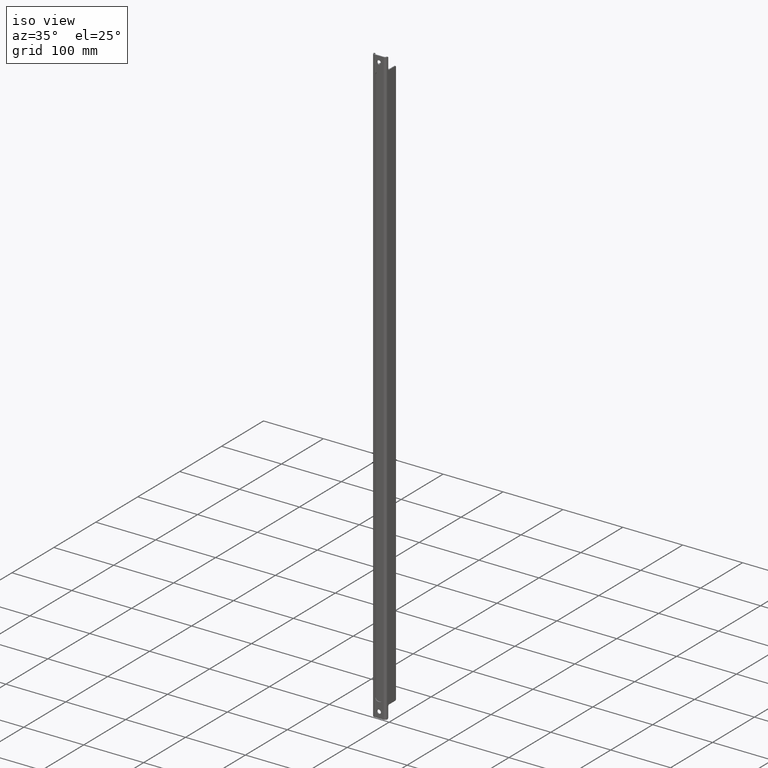
[diagram: clean part render]
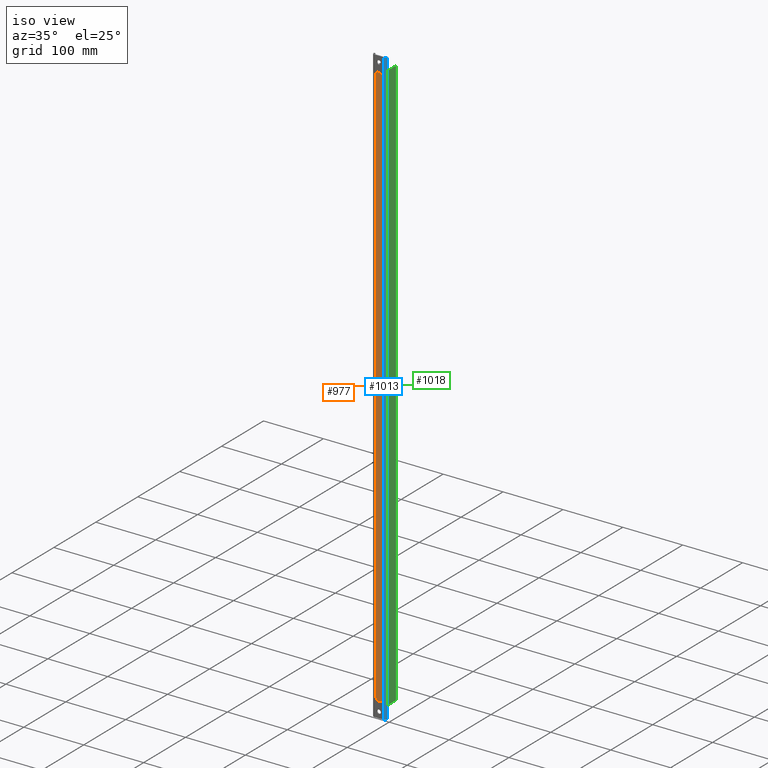
[diagram: same view with three faces highlighted in distinct colors, each labeled with its STEP entity id]
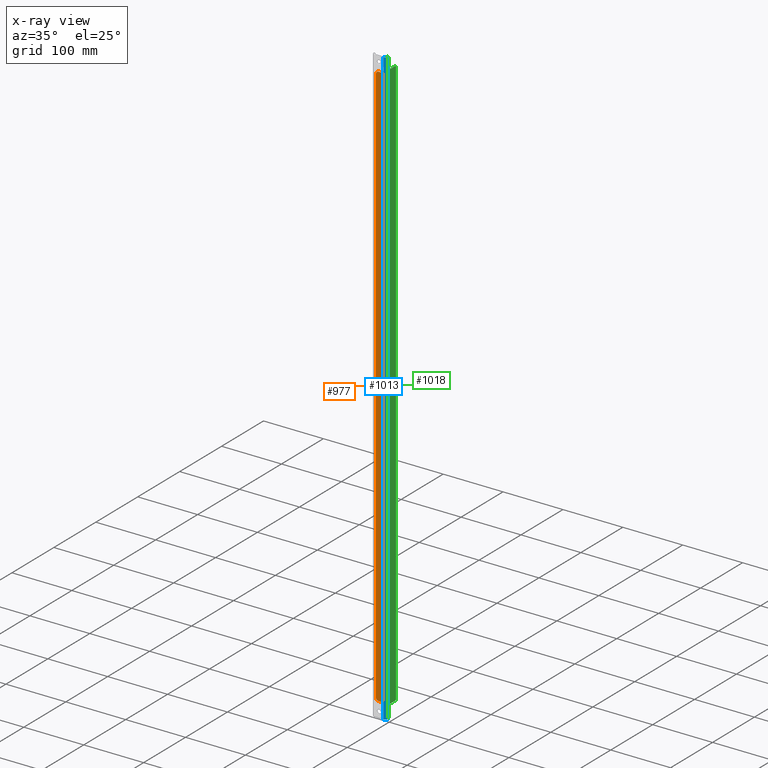
[diagram: x-ray of the same camera — body ghosted, the three highlighted faces saturated]
A machine part, iso view with three faces highlighted in distinct colors.
The next image is the same camera in x-ray (body ghosted, the three faces saturated) — at least one of them is partly hidden behind the body in this view.
Their STEP definitions:

[orange] entity #977 — the highlighted planar face has unit normal (0, 1, -0).
#20=LINE('',#1486,#108);
#21=LINE('',#1491,#109);
#22=LINE('',#1495,#110);
#23=LINE('',#1499,#111);
#108=VECTOR('',#1176,1000.);
#109=VECTOR('',#1179,1000.);
#110=VECTOR('',#1182,1000.);
#111=VECTOR('',#1185,1000.);
#230=ORIENTED_EDGE('',*,*,#516,.F.);
#231=ORIENTED_EDGE('',*,*,#517,.T.);
#232=ORIENTED_EDGE('',*,*,#518,.F.);
#233=ORIENTED_EDGE('',*,*,#519,.T.);
#234=ORIENTED_EDGE('',*,*,#520,.F.);
#235=ORIENTED_EDGE('',*,*,#521,.T.);
#236=ORIENTED_EDGE('',*,*,#522,.F.);
#237=ORIENTED_EDGE('',*,*,#523,.T.);
#516=EDGE_CURVE('',#660,#661,#20,.T.);
#517=EDGE_CURVE('',#660,#662,#756,.T.);
#518=EDGE_CURVE('',#663,#662,#21,.T.);
#519=EDGE_CURVE('',#663,#664,#757,.T.);
#520=EDGE_CURVE('',#665,#664,#22,.T.);
#521=EDGE_CURVE('',#665,#666,#758,.T.);
#522=EDGE_CURVE('',#667,#666,#23,.T.);
#523=EDGE_CURVE('',#667,#661,#759,.T.);
#660=VERTEX_POINT('',#1487);
#661=VERTEX_POINT('',#1488);
#662=VERTEX_POINT('',#1490);
#663=VERTEX_POINT('',#1492);
#664=VERTEX_POINT('',#1494);
#665=VERTEX_POINT('',#1496);
#666=VERTEX_POINT('',#1498);
#667=VERTEX_POINT('',#1500);
#756=CIRCLE('',#1052,5.);
#757=CIRCLE('',#1053,5.);
#758=CIRCLE('',#1054,5.);
#759=CIRCLE('',#1055,5.);
#814=EDGE_LOOP('',(#230,#231,#232,#233,#234,#235,#236,#237));
#882=FACE_BOUND('',#814,.T.);
#946=PLANE('',#1051);
#977=ADVANCED_FACE('',(#882),#946,.F.);
#1051=AXIS2_PLACEMENT_3D('',#1485,#1174,#1175);
#1052=AXIS2_PLACEMENT_3D('',#1489,#1177,#1178);
#1053=AXIS2_PLACEMENT_3D('',#1493,#1180,#1181);
#1054=AXIS2_PLACEMENT_3D('',#1497,#1183,#1184);
#1055=AXIS2_PLACEMENT_3D('',#1501,#1186,#1187);
#1174=DIRECTION('',(4.06163832661068E-16,1.,-3.32494788514936E-15));
#1175=DIRECTION('',(-1.,4.06163832661068E-16,6.76398658185478E-32));
#1176=DIRECTION('',(-8.93686180177302E-17,-1.66533453693773E-16,1.));
#1177=DIRECTION('',(-4.06163832661068E-16,-1.,-1.66533453693773E-16));
#1178=DIRECTION('',(-1.,4.06163832661068E-16,-8.93686180177302E-17));
#1179=DIRECTION('',(-1.,4.06163832661068E-16,-8.93686180177302E-17));
#1180=DIRECTION('',(-4.06163832661068E-16,-1.,-1.66533453693773E-16));
#1181=DIRECTION('',(-1.,4.06163832661068E-16,-8.93686180177302E-17));
#1182=DIRECTION('',(8.93686180177302E-17,1.66533453693773E-16,-1.));
#1183=DIRECTION('',(-4.06163832661068E-16,-1.,-1.66533453693773E-16));
#1184=DIRECTION('',(-1.,4.06163832661068E-16,-8.93686180177302E-17));
#1185=DIRECTION('',(1.,-4.06163832661068E-16,8.93686180177302E-17));
#1186=DIRECTION('',(-4.06163832661068E-16,-1.,-1.66533453693773E-16));
#1187=DIRECTION('',(-1.,4.06163832661068E-16,-8.93686180177302E-17));
#1485=CARTESIAN_POINT('',(4.05776737694852E-15,-23.0000000000003,-3.28184349361263E-14));
#1486=CARTESIAN_POINT('',(-6.00000000000002,-23.,-4.00565866005999E-15));
#1487=CARTESIAN_POINT('',(-5.99999999999994,-22.9999999999999,-470.));
#1488=CARTESIAN_POINT('',(-6.00000000000006,-23.0000000000001,470.));
#1489=CARTESIAN_POINT('',(-0.999999999999947,-22.9999999999999,-470.));
#1490=CARTESIAN_POINT('',(-0.999999999999946,-22.9999999999999,-475.));
#1491=CARTESIAN_POINT('',(6.42877840847041E-14,-22.9999999999999,-475.));
#1492=CARTESIAN_POINT('',(1.00000000000006,-22.9999999999999,-475.));
#1493=CARTESIAN_POINT('',(1.00000000000006,-22.9999999999999,-470.));
#1494=CARTESIAN_POINT('',(6.00000000000002,-22.9999999999999,-470.));
#1495=CARTESIAN_POINT('',(5.99999999999998,-23.,-2.93323524384723E-15));
#1496=CARTESIAN_POINT('',(5.99999999999997,-23.0000000000001,470.));
#1497=CARTESIAN_POINT('',(0.999999999999975,-23.0000000000001,470.));
#1498=CARTESIAN_POINT('',(0.999999999999975,-23.0000000000001,475.));
#1499=CARTESIAN_POINT('',(-1.4563160745674E-14,-23.0000000000001,475.));
#1500=CARTESIAN_POINT('',(-1.00000000000003,-23.0000000000001,475.));
#1501=CARTESIAN_POINT('',(-1.00000000000003,-23.0000000000001,470.));

[blue] entity #1013 — the highlighted cylindrical surface (edge-blend (fillet) strip) has radius 4 mm, axis along (0, 0, -1).
#33=LINE('',#1535,#121);
#90=LINE('',#1720,#178);
#121=VECTOR('',#1213,1000.);
#178=VECTOR('',#1410,1000.);
#215=CYLINDRICAL_SURFACE('',#1131,3.99999999999999);
#428=ORIENTED_EDGE('',*,*,#630,.T.);
#429=ORIENTED_EDGE('',*,*,#539,.T.);
#430=ORIENTED_EDGE('',*,*,#631,.F.);
#431=ORIENTED_EDGE('',*,*,#632,.F.);
#539=EDGE_CURVE('',#684,#682,#33,.T.);
#630=EDGE_CURVE('',#740,#684,#800,.T.);
#631=EDGE_CURVE('',#741,#682,#801,.T.);
#632=EDGE_CURVE('',#740,#741,#90,.T.);
#682=VERTEX_POINT('',#1533);
#684=VERTEX_POINT('',#1536);
#740=VERTEX_POINT('',#1717);
#741=VERTEX_POINT('',#1719);
#800=CIRCLE('',#1132,3.99999999999999);
#801=CIRCLE('',#1133,3.99999999999999);
#859=EDGE_LOOP('',(#428,#429,#430,#431));
#927=FACE_BOUND('',#859,.T.);
#1013=ADVANCED_FACE('',(#927),#215,.T.);
#1131=AXIS2_PLACEMENT_3D('',#1715,#1404,#1405);
#1132=AXIS2_PLACEMENT_3D('',#1716,#1406,#1407);
#1133=AXIS2_PLACEMENT_3D('',#1718,#1408,#1409);
#1213=DIRECTION('',(-3.43749899352818E-17,1.66533453693773E-16,-1.));
#1404=DIRECTION('',(8.93686180177302E-17,1.66533453693773E-16,-1.));
#1405=DIRECTION('',(4.06163832661068E-16,1.,1.66533453693773E-16));
#1406=DIRECTION('',(8.93686180177302E-17,1.66533453693773E-16,-1.));
#1407=DIRECTION('',(4.06163832661068E-16,1.,1.66533453693773E-16));
#1408=DIRECTION('',(8.93686180177302E-17,1.66533453693773E-16,-1.));
#1409=DIRECTION('',(4.06163832661068E-16,1.,1.66533453693773E-16));
#1410=DIRECTION('',(8.93686180177302E-17,1.31838984174237E-16,-1.));
#1533=CARTESIAN_POINT('',(7.49999999999997,-24.4999999999999,-500.));
#1535=CARTESIAN_POINT('',(7.5,-24.5000000000001,375.));
#1536=CARTESIAN_POINT('',(7.50000000000003,-24.5000000000001,500.));
#1715=CARTESIAN_POINT('',(7.50000000000002,-20.5,-375.));
#1716=CARTESIAN_POINT('',(7.5,-20.5000000000001,500.));
#1717=CARTESIAN_POINT('',(11.5,-20.5000000000001,500.));
#1718=CARTESIAN_POINT('',(7.49999999999999,-20.5,-500.));
#1719=CARTESIAN_POINT('',(11.5000000000001,-20.4999999999999,-500.));
#1720=CARTESIAN_POINT('',(11.5,-20.5,-2.42146940419665E-15));

[green] entity #1018 — the highlighted planar face has unit normal (1, -0, 0).
#90=LINE('',#1720,#178);
#95=LINE('',#1734,#183);
#96=LINE('',#1738,#184);
#97=LINE('',#1742,#185);
#98=LINE('',#1746,#186);
#99=LINE('',#1750,#187);
#178=VECTOR('',#1410,1000.);
#183=VECTOR('',#1429,1000.);
#184=VECTOR('',#1432,1000.);
#185=VECTOR('',#1435,1000.);
#186=VECTOR('',#1438,1000.);
#187=VECTOR('',#1441,1000.);
#456=ORIENTED_EDGE('',*,*,#632,.T.);
#457=ORIENTED_EDGE('',*,*,#635,.T.);
#458=ORIENTED_EDGE('',*,*,#639,.T.);
#459=ORIENTED_EDGE('',*,*,#640,.T.);
#460=ORIENTED_EDGE('',*,*,#641,.T.);
#461=ORIENTED_EDGE('',*,*,#642,.T.);
#462=ORIENTED_EDGE('',*,*,#643,.F.);
#463=ORIENTED_EDGE('',*,*,#644,.T.);
#464=ORIENTED_EDGE('',*,*,#645,.T.);
#465=ORIENTED_EDGE('',*,*,#646,.T.);
#466=ORIENTED_EDGE('',*,*,#647,.T.);
#467=ORIENTED_EDGE('',*,*,#637,.T.);
#632=EDGE_CURVE('',#740,#741,#90,.T.);
#635=EDGE_CURVE('',#741,#742,#802,.T.);
#637=EDGE_CURVE('',#743,#740,#803,.T.);
#639=EDGE_CURVE('',#742,#744,#95,.T.);
#640=EDGE_CURVE('',#744,#745,#804,.T.);
#641=EDGE_CURVE('',#745,#746,#96,.T.);
#642=EDGE_CURVE('',#746,#747,#805,.T.);
#643=EDGE_CURVE('',#748,#747,#97,.T.);
#644=EDGE_CURVE('',#748,#749,#806,.T.);
#645=EDGE_CURVE('',#749,#750,#98,.T.);
#646=EDGE_CURVE('',#750,#751,#807,.T.);
#647=EDGE_CURVE('',#751,#743,#99,.T.);
#740=VERTEX_POINT('',#1717);
#741=VERTEX_POINT('',#1719);
#742=VERTEX_POINT('',#1727);
#743=VERTEX_POINT('',#1731);
#744=VERTEX_POINT('',#1735);
#745=VERTEX_POINT('',#1737);
#746=VERTEX_POINT('',#1739);
#747=VERTEX_POINT('',#1741);
#748=VERTEX_POINT('',#1743);
#749=VERTEX_POINT('',#1745);
#750=VERTEX_POINT('',#1747);
#751=VERTEX_POINT('',#1749);
#802=CIRCLE('',#1137,2.);
#803=CIRCLE('',#1139,2.);
#804=CIRCLE('',#1141,2.);
#805=CIRCLE('',#1142,2.);
#806=CIRCLE('',#1143,2.);
#807=CIRCLE('',#1144,2.);
#864=EDGE_LOOP('',(#456,#457,#458,#459,#460,#461,#462,#463,#464,#465,#466,
#467));
#932=FACE_BOUND('',#864,.T.);
#967=PLANE('',#1140);
#1018=ADVANCED_FACE('',(#932),#967,.T.);
#1137=AXIS2_PLACEMENT_3D('',#1726,#1419,#1420);
#1139=AXIS2_PLACEMENT_3D('',#1730,#1424,#1425);
#1140=AXIS2_PLACEMENT_3D('',#1733,#1427,#1428);
#1141=AXIS2_PLACEMENT_3D('',#1736,#1430,#1431);
#1142=AXIS2_PLACEMENT_3D('',#1740,#1433,#1434);
#1143=AXIS2_PLACEMENT_3D('',#1744,#1436,#1437);
#1144=AXIS2_PLACEMENT_3D('',#1748,#1439,#1440);
#1410=DIRECTION('',(8.93686180177302E-17,1.31838984174237E-16,-1.));
#1419=DIRECTION('',(1.,-4.06163832661068E-16,8.93686180177302E-17));
#1420=DIRECTION('',(8.93686180177302E-17,1.66533453693773E-16,-1.));
#1424=DIRECTION('',(1.,-4.06163832661068E-16,8.93686180177302E-17));
#1425=DIRECTION('',(8.93686180177302E-17,1.66533453693773E-16,-1.));
#1427=DIRECTION('',(1.,-4.06163832661068E-16,8.93686180177302E-17));
#1428=DIRECTION('',(8.93686180177302E-17,1.66533453693773E-16,-1.));
#1429=DIRECTION('',(-8.93686180177302E-17,-1.66533453693773E-16,1.));
#1430=DIRECTION('',(-1.,4.06163832661068E-16,-8.93686180177302E-17));
#1431=DIRECTION('',(8.93686180177302E-17,1.66533453693773E-16,-1.));
#1432=DIRECTION('',(4.06163832661068E-16,1.,1.66533453693773E-16));
#1433=DIRECTION('',(1.,-4.06163832661068E-16,8.93686180177302E-17));
#1434=DIRECTION('',(8.93686180177302E-17,1.66533453693773E-16,-1.));
#1435=DIRECTION('',(8.93686180177302E-17,1.66533453693773E-16,-1.));
#1436=DIRECTION('',(1.,-4.06163832661068E-16,8.93686180177302E-17));
#1437=DIRECTION('',(8.93686180177302E-17,1.66533453693773E-16,-1.));
#1438=DIRECTION('',(-4.06163832661068E-16,-1.,-1.66533453693773E-16));
#1439=DIRECTION('',(-1.,4.06163832661068E-16,-8.93686180177302E-17));
#1440=DIRECTION('',(8.93686180177302E-17,1.66533453693773E-16,-1.));
#1441=DIRECTION('',(-8.93686180177302E-17,-4.2624633981144E-17,1.));
#1717=CARTESIAN_POINT('',(11.5,-20.5000000000001,500.));
#1719=CARTESIAN_POINT('',(11.5000000000001,-20.4999999999999,-500.));
#1720=CARTESIAN_POINT('',(11.5,-20.5,-2.42146940419665E-15));
#1726=CARTESIAN_POINT('',(11.5000000000001,-20.4999999999999,-498.));
#1727=CARTESIAN_POINT('',(11.5000000000001,-18.4999999999999,-498.));
#1730=CARTESIAN_POINT('',(11.5,-20.5000000000001,498.));
#1731=CARTESIAN_POINT('',(11.5,-18.5000000000001,498.));
#1733=CARTESIAN_POINT('',(11.5,-23.,-2.75106686463224E-15));
#1734=CARTESIAN_POINT('',(11.5,-18.4999999999999,-375.));
#1735=CARTESIAN_POINT('',(11.5,-18.4999999999999,-481.));
#1736=CARTESIAN_POINT('',(11.5000000000001,-16.4999999999999,-481.));
#1737=CARTESIAN_POINT('',(11.5000000000001,-16.4999999999999,-479.));
#1738=CARTESIAN_POINT('',(11.5000000000001,7.63278329429795E-14,-479.));
#1739=CARTESIAN_POINT('',(11.4999999999999,-1.99999999999992,-479.));
#1740=CARTESIAN_POINT('',(11.4999999999999,-1.99999999999992,-477.));
#1741=CARTESIAN_POINT('',(11.4999999999998,7.59670104599763E-14,-477.));
#1742=CARTESIAN_POINT('',(11.4999999999998,5.89805981832114E-14,-375.));
#1743=CARTESIAN_POINT('',(11.4999999999998,-8.32667268468867E-14,477.));
#1744=CARTESIAN_POINT('',(11.4999999999998,-2.00000000000008,477.));
#1745=CARTESIAN_POINT('',(11.4999999999998,-2.00000000000008,479.));
#1746=CARTESIAN_POINT('',(11.5,-8.32667268468867E-14,479.));
#1747=CARTESIAN_POINT('',(11.5,-16.5000000000001,479.));
#1748=CARTESIAN_POINT('',(11.5,-16.5000000000001,481.));
#1749=CARTESIAN_POINT('',(11.4999999999999,-18.5000000000001,481.));
#1750=CARTESIAN_POINT('',(11.4999999999999,-18.5000000000001,500.));